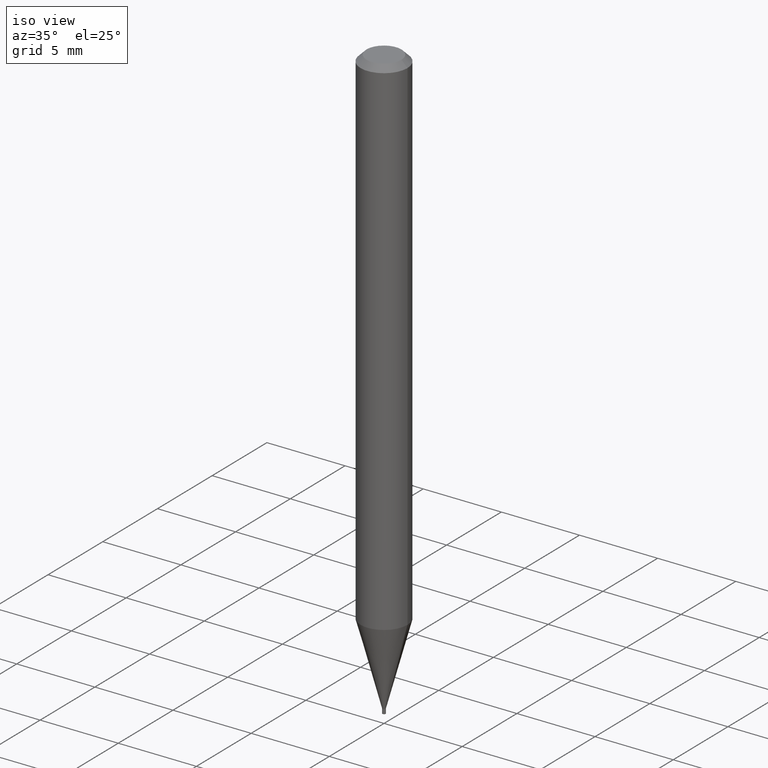
[diagram: clean part render]
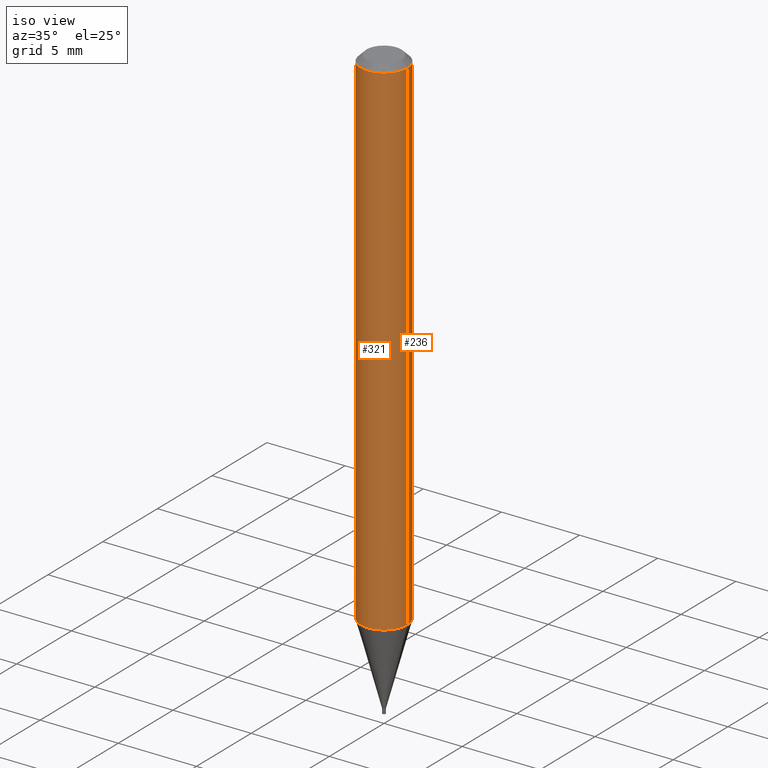
[diagram: same view with one multi-face feature highlighted, each face labeled with its STEP entity id]
A machine part, iso view. The highlighted faces form ONE feature: a constant-radius fillet chain: 2 tangent blend faces with common blend radius 1.4999 mm. The faces share edges in the B-rep.
Their STEP definitions:
[1] entity #236 (Cylinder):
#17 = EDGE_CURVE ( 'NONE', #82, #402, #28, .T. ) ;
#28 = LINE ( 'NONE', #285, #254 ) ;
#55 = FACE_OUTER_BOUND ( 'NONE', #430, .T. ) ;
#58 = CYLINDRICAL_SURFACE ( 'NONE', #71, 0.05904999999999999832 ) ;
#71 = AXIS2_PLACEMENT_3D ( 'NONE', #201, #142, #112 ) ;
#74 = CARTESIAN_POINT ( 'NONE',  ( -0.05904999999999999832, -4.058472788161738088E-15, -1.282564000502955048 ) ) ;
#82 = VERTEX_POINT ( 'NONE', #74 ) ;
#90 = CARTESIAN_POINT ( 'NONE',  ( 0.05904999999999999832, -4.123439461173740327E-16, 2.879382386107500220E-30 ) ) ;
#101 = DIRECTION ( 'NONE',  ( -2.445468806185136877E-29, 3.491481338843145188E-15, 1.000000000000000000 ) ) ;
#112 = DIRECTION ( 'NONE',  ( 1.000000000000000000, -6.982962677686266711E-15, 4.876176775795936353E-29 ) ) ;
#118 = VERTEX_POINT ( 'NONE', #249 ) ;
#126 = LINE ( 'NONE', #90, #393 ) ;
#133 = ORIENTED_EDGE ( 'NONE', *, *, #463, .F. ) ;
#142 = DIRECTION ( 'NONE',  ( -2.445468806185136597E-29, 3.491481338843145583E-15, 1.000000000000000000 ) ) ;
#150 = CIRCLE ( 'NONE', #287, 0.05904999999999999832 ) ;
#153 = CARTESIAN_POINT ( 'NONE',  ( 3.136470255165994153E-29, -4.478048273628078370E-15, -1.282564000502955048 ) ) ;
#173 = DIRECTION ( 'NONE',  ( -2.445468806185136877E-29, 3.491481338843145188E-15, 1.000000000000000000 ) ) ;
#176 = ORIENTED_EDGE ( 'NONE', *, *, #220, .F. ) ;
#201 = CARTESIAN_POINT ( 'NONE',  ( 0.000000000000000000, 0.000000000000000000, 0.000000000000000000 ) ) ;
#220 = EDGE_CURVE ( 'NONE', #300, #118, #126, .T. ) ;
#236 = ADVANCED_FACE ( 'NONE', ( #55 ), #58, .T. ) ;
#243 = CARTESIAN_POINT ( 'NONE',  ( 0.05904999999999999832, -4.890392219745453290E-15, -1.282564000502955048 ) ) ;
#249 = CARTESIAN_POINT ( 'NONE',  ( 0.05904999999999999832, -4.647161662000212105E-16, -0.01499999999999999944 ) ) ;
#250 = AXIS2_PLACEMENT_3D ( 'NONE', #153, #290, #374 ) ;
#254 = VECTOR ( 'NONE', #173, 39.37007874015748143 ) ;
#258 = DIRECTION ( 'NONE',  ( 1.000000000000000000, -6.982962677686266711E-15, 0.000000000000000000 ) ) ;
#276 = EDGE_CURVE ( 'NONE', #300, #82, #367, .T. ) ;
#285 = CARTESIAN_POINT ( 'NONE',  ( -0.05904999999999999832, 4.195754854663391478E-16, -2.904631170795521892E-30 ) ) ;
#287 = AXIS2_PLACEMENT_3D ( 'NONE', #364, #330, #258 ) ;
#290 = DIRECTION ( 'NONE',  ( -2.445468806185136597E-29, 3.491481338843145583E-15, 1.000000000000000000 ) ) ;
#300 = VERTEX_POINT ( 'NONE', #243 ) ;
#328 = ORIENTED_EDGE ( 'NONE', *, *, #276, .T. ) ;
#329 = ORIENTED_EDGE ( 'NONE', *, *, #17, .T. ) ;
#330 = DIRECTION ( 'NONE',  ( -2.445468806185136597E-29, 3.491481338843145583E-15, 1.000000000000000000 ) ) ;
#364 = CARTESIAN_POINT ( 'NONE',  ( 3.668203209277705088E-31, -5.237222008264718399E-17, -0.01499999999999999944 ) ) ;
#366 = CARTESIAN_POINT ( 'NONE',  ( -0.05904999999999999832, -1.845634761389023823E-15, -0.01499999999999999944 ) ) ;
#367 = CIRCLE ( 'NONE', #250, 0.05904999999999999832 ) ;
#374 = DIRECTION ( 'NONE',  ( 1.000000000000000000, -6.982962677686273021E-15, 0.000000000000000000 ) ) ;
#393 = VECTOR ( 'NONE', #101, 39.37007874015748143 ) ;
#402 = VERTEX_POINT ( 'NONE', #366 ) ;
#430 = EDGE_LOOP ( 'NONE', ( #328, #329, #133, #176 ) ) ;
#463 = EDGE_CURVE ( 'NONE', #118, #402, #150, .T. ) ;
[2] entity #321 (Cylinder):
#6 = FACE_OUTER_BOUND ( 'NONE', #448, .T. ) ;
#17 = EDGE_CURVE ( 'NONE', #82, #402, #28, .T. ) ;
#28 = LINE ( 'NONE', #285, #254 ) ;
#39 = CIRCLE ( 'NONE', #310, 0.05904999999999999832 ) ;
#56 = ORIENTED_EDGE ( 'NONE', *, *, #283, .F. ) ;
#70 = DIRECTION ( 'NONE',  ( 1.000000000000000000, -6.982962677686266711E-15, 0.000000000000000000 ) ) ;
#74 = CARTESIAN_POINT ( 'NONE',  ( -0.05904999999999999832, -4.058472788161738088E-15, -1.282564000502955048 ) ) ;
#81 = AXIS2_PLACEMENT_3D ( 'NONE', #263, #404, #363 ) ;
#82 = VERTEX_POINT ( 'NONE', #74 ) ;
#87 = ORIENTED_EDGE ( 'NONE', *, *, #220, .T. ) ;
#90 = CARTESIAN_POINT ( 'NONE',  ( 0.05904999999999999832, -4.123439461173740327E-16, 2.879382386107500220E-30 ) ) ;
#99 = CARTESIAN_POINT ( 'NONE',  ( 3.668203209277705088E-31, -5.237222008264718399E-17, -0.01499999999999999944 ) ) ;
#101 = DIRECTION ( 'NONE',  ( -2.445468806185136877E-29, 3.491481338843145188E-15, 1.000000000000000000 ) ) ;
#118 = VERTEX_POINT ( 'NONE', #249 ) ;
#126 = LINE ( 'NONE', #90, #393 ) ;
#147 = DIRECTION ( 'NONE',  ( -2.445468806185136597E-29, 3.491481338843145583E-15, 1.000000000000000000 ) ) ;
#158 = ORIENTED_EDGE ( 'NONE', *, *, #17, .F. ) ;
#173 = DIRECTION ( 'NONE',  ( -2.445468806185136877E-29, 3.491481338843145188E-15, 1.000000000000000000 ) ) ;
#214 = EDGE_CURVE ( 'NONE', #82, #300, #411, .T. ) ;
#220 = EDGE_CURVE ( 'NONE', #300, #118, #126, .T. ) ;
#243 = CARTESIAN_POINT ( 'NONE',  ( 0.05904999999999999832, -4.890392219745453290E-15, -1.282564000502955048 ) ) ;
#249 = CARTESIAN_POINT ( 'NONE',  ( 0.05904999999999999832, -4.647161662000212105E-16, -0.01499999999999999944 ) ) ;
#254 = VECTOR ( 'NONE', #173, 39.37007874015748143 ) ;
#263 = CARTESIAN_POINT ( 'NONE',  ( 3.136470255165994153E-29, -4.478048273628078370E-15, -1.282564000502955048 ) ) ;
#283 = EDGE_CURVE ( 'NONE', #402, #118, #39, .T. ) ;
#285 = CARTESIAN_POINT ( 'NONE',  ( -0.05904999999999999832, 4.195754854663391478E-16, -2.904631170795521892E-30 ) ) ;
#300 = VERTEX_POINT ( 'NONE', #243 ) ;
#310 = AXIS2_PLACEMENT_3D ( 'NONE', #99, #147, #70 ) ;
#313 = ORIENTED_EDGE ( 'NONE', *, *, #214, .T. ) ;
#321 = ADVANCED_FACE ( 'NONE', ( #6 ), #357, .T. ) ;
#327 = DIRECTION ( 'NONE',  ( -2.445468806185136597E-29, 3.491481338843145583E-15, 1.000000000000000000 ) ) ;
#351 = AXIS2_PLACEMENT_3D ( 'NONE', #390, #327, #361 ) ;
#357 = CYLINDRICAL_SURFACE ( 'NONE', #351, 0.05904999999999999832 ) ;
#361 = DIRECTION ( 'NONE',  ( 1.000000000000000000, -6.982962677686266711E-15, 4.876176775795936353E-29 ) ) ;
#363 = DIRECTION ( 'NONE',  ( 1.000000000000000000, -6.982962677686273021E-15, 0.000000000000000000 ) ) ;
#366 = CARTESIAN_POINT ( 'NONE',  ( -0.05904999999999999832, -1.845634761389023823E-15, -0.01499999999999999944 ) ) ;
#390 = CARTESIAN_POINT ( 'NONE',  ( 0.000000000000000000, 0.000000000000000000, 0.000000000000000000 ) ) ;
#393 = VECTOR ( 'NONE', #101, 39.37007874015748143 ) ;
#402 = VERTEX_POINT ( 'NONE', #366 ) ;
#404 = DIRECTION ( 'NONE',  ( -2.445468806185136597E-29, 3.491481338843145583E-15, 1.000000000000000000 ) ) ;
#411 = CIRCLE ( 'NONE', #81, 0.05904999999999999832 ) ;
#448 = EDGE_LOOP ( 'NONE', ( #158, #313, #87, #56 ) ) ;